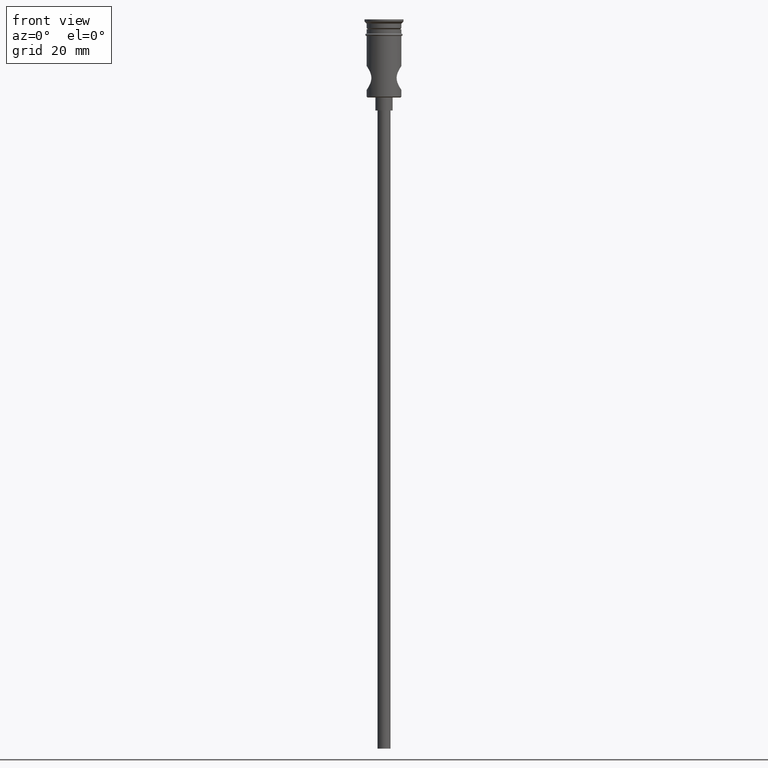
[diagram: clean part render]
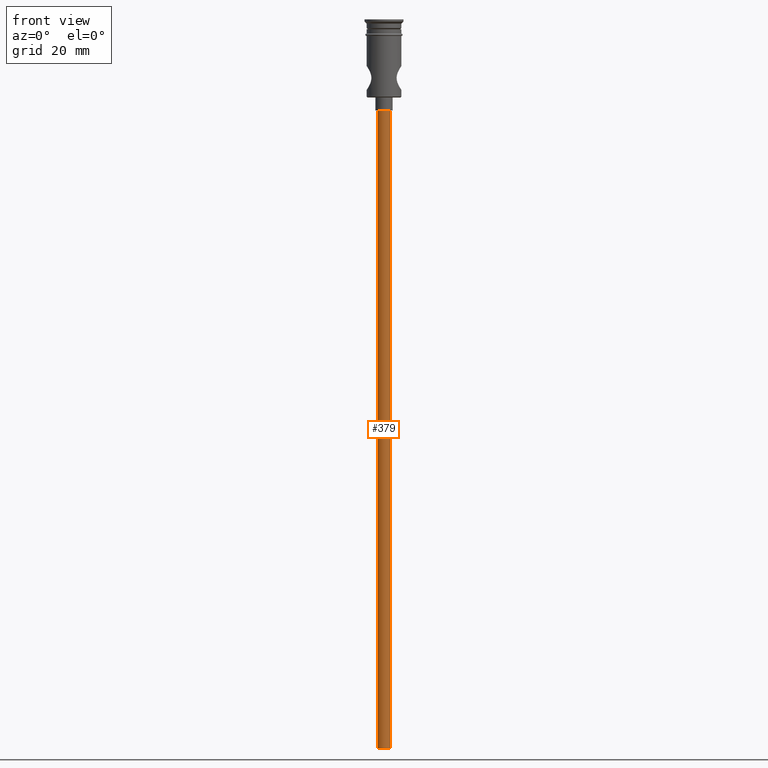
[diagram: same view with one face highlighted and labeled with its STEP entity id]
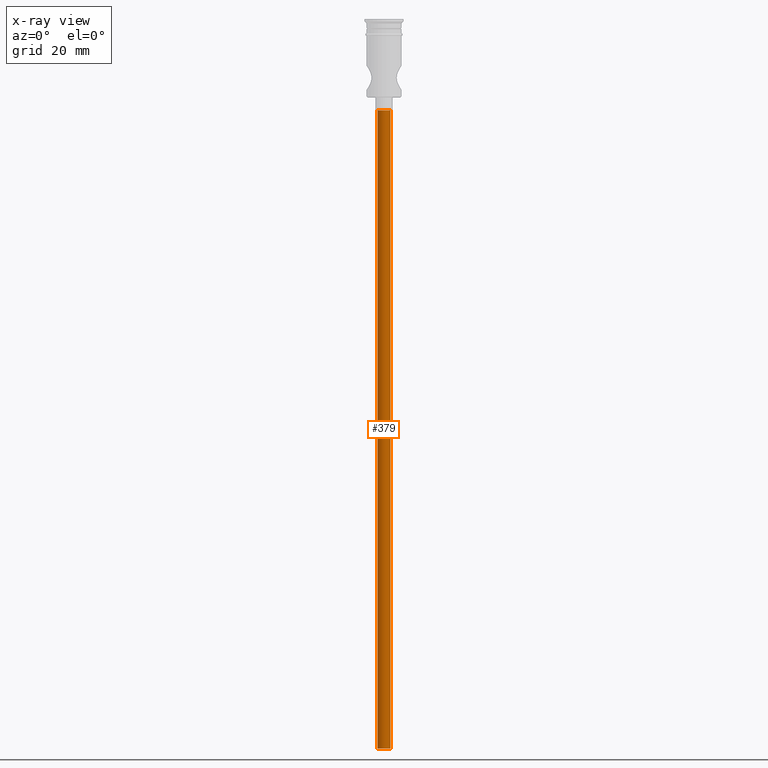
[diagram: x-ray of the same camera — body ghosted, the highlighted face saturated]
A machine part, front view. The second image highlights one B-rep face of the part: STEP entity #379.
The next image is the same camera in x-ray: the body ghosted, the highlighted face saturated — about 0% of this face is hidden behind the body in this view.
In plain terms, the highlighted cylindrical surface (edge-blend (fillet) strip) has radius 1.5 mm, axis along (-0, -0, 1).
Its self-contained STEP definition (entity closure, byte-faithful):
#2 = ORIENTED_EDGE ( 'NONE', *, *, #22, .T. ) ;
#22 = EDGE_CURVE ( 'NONE', #371, #1380, #67, .T. ) ;
#28 = AXIS2_PLACEMENT_3D ( 'NONE', #266, #814, #177 ) ;
#40 = ORIENTED_EDGE ( 'NONE', *, *, #173, .F. ) ;
#67 = CIRCLE ( 'NONE', #409, 1.500000000000000222 ) ;
#85 = EDGE_LOOP ( 'NONE', ( #40, #558, #990, #2 ) ) ;
#140 = DIRECTION ( 'NONE',  ( -1.000000000000000000, 0.000000000000000000, 0.000000000000000000 ) ) ;
#173 = EDGE_CURVE ( 'NONE', #456, #1380, #766, .T. ) ;
#177 = DIRECTION ( 'NONE',  ( -1.000000000000000000, 0.000000000000000000, 0.000000000000000000 ) ) ;
#183 = VECTOR ( 'NONE', #1003, 1000.000000000000000 ) ;
#223 = CARTESIAN_POINT ( 'NONE',  ( 1.500000000000000222, 0.000000000000000000, -167.9999999999999716 ) ) ;
#266 = CARTESIAN_POINT ( 'NONE',  ( 0.000000000000000000, 0.000000000000000000, -167.9999999999999716 ) ) ;
#298 = DIRECTION ( 'NONE',  ( -0.000000000000000000, -0.000000000000000000, 1.000000000000000000 ) ) ;
#307 = LINE ( 'NONE', #223, #1294 ) ;
#371 = VERTEX_POINT ( 'NONE', #1404 ) ;
#379 = ADVANCED_FACE ( 'NONE', ( #1415 ), #948, .T. ) ;
#407 = DIRECTION ( 'NONE',  ( -0.000000000000000000, -0.000000000000000000, 1.000000000000000000 ) ) ;
#409 = AXIS2_PLACEMENT_3D ( 'NONE', #822, #1276, #140 ) ;
#456 = VERTEX_POINT ( 'NONE', #674 ) ;
#558 = ORIENTED_EDGE ( 'NONE', *, *, #1288, .F. ) ;
#674 = CARTESIAN_POINT ( 'NONE',  ( -1.500000000000000222, 1.836970198721030181E-16, -167.9999999999999716 ) ) ;
#766 = LINE ( 'NONE', #1223, #183 ) ;
#814 = DIRECTION ( 'NONE',  ( 0.000000000000000000, 0.000000000000000000, -1.000000000000000000 ) ) ;
#822 = CARTESIAN_POINT ( 'NONE',  ( 0.000000000000000000, 0.000000000000000000, -20.99999999999999645 ) ) ;
#845 = CARTESIAN_POINT ( 'NONE',  ( 0.000000000000000000, 0.000000000000000000, -167.9999999999999716 ) ) ;
#943 = CARTESIAN_POINT ( 'NONE',  ( -1.500000000000000222, 1.836970198721030181E-16, -20.99999999999999645 ) ) ;
#948 = CYLINDRICAL_SURFACE ( 'NONE', #1253, 1.500000000000000222 ) ;
#953 = CARTESIAN_POINT ( 'NONE',  ( 1.500000000000000222, 0.000000000000000000, -167.9999999999999716 ) ) ;
#975 = CIRCLE ( 'NONE', #28, 1.500000000000000222 ) ;
#990 = ORIENTED_EDGE ( 'NONE', *, *, #1051, .T. ) ;
#1003 = DIRECTION ( 'NONE',  ( -0.000000000000000000, -0.000000000000000000, 1.000000000000000000 ) ) ;
#1051 = EDGE_CURVE ( 'NONE', #1328, #371, #307, .T. ) ;
#1223 = CARTESIAN_POINT ( 'NONE',  ( -1.500000000000000222, 1.836970198721030181E-16, -167.9999999999999716 ) ) ;
#1253 = AXIS2_PLACEMENT_3D ( 'NONE', #845, #407, #1297 ) ;
#1276 = DIRECTION ( 'NONE',  ( 0.000000000000000000, 0.000000000000000000, -1.000000000000000000 ) ) ;
#1288 = EDGE_CURVE ( 'NONE', #1328, #456, #975, .T. ) ;
#1294 = VECTOR ( 'NONE', #298, 1000.000000000000000 ) ;
#1297 = DIRECTION ( 'NONE',  ( 1.000000000000000000, 0.000000000000000000, 0.000000000000000000 ) ) ;
#1328 = VERTEX_POINT ( 'NONE', #953 ) ;
#1380 = VERTEX_POINT ( 'NONE', #943 ) ;
#1404 = CARTESIAN_POINT ( 'NONE',  ( 1.500000000000000222, 0.000000000000000000, -20.99999999999999645 ) ) ;
#1415 = FACE_OUTER_BOUND ( 'NONE', #85, .T. ) ;